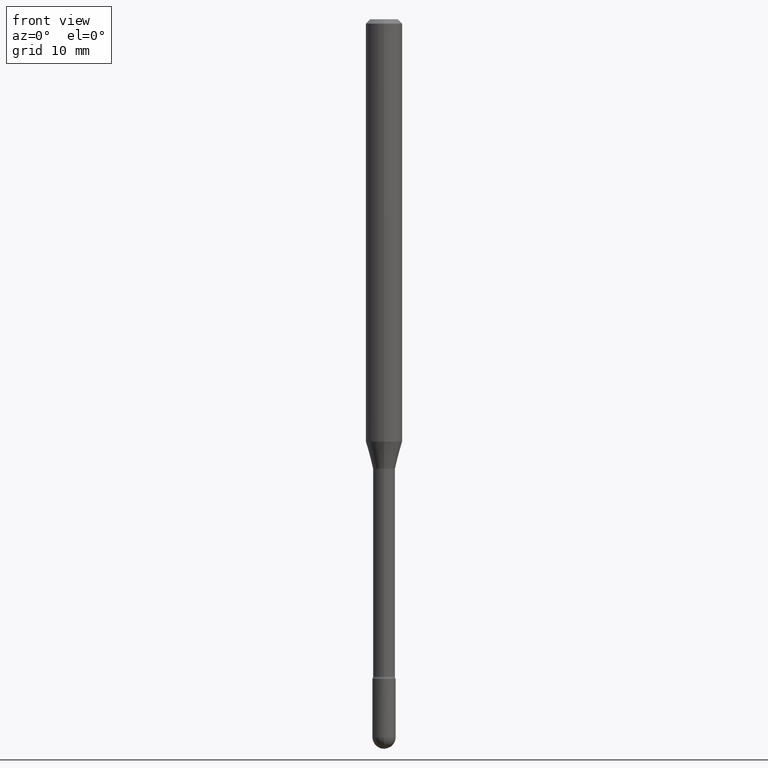
[diagram: clean part render]
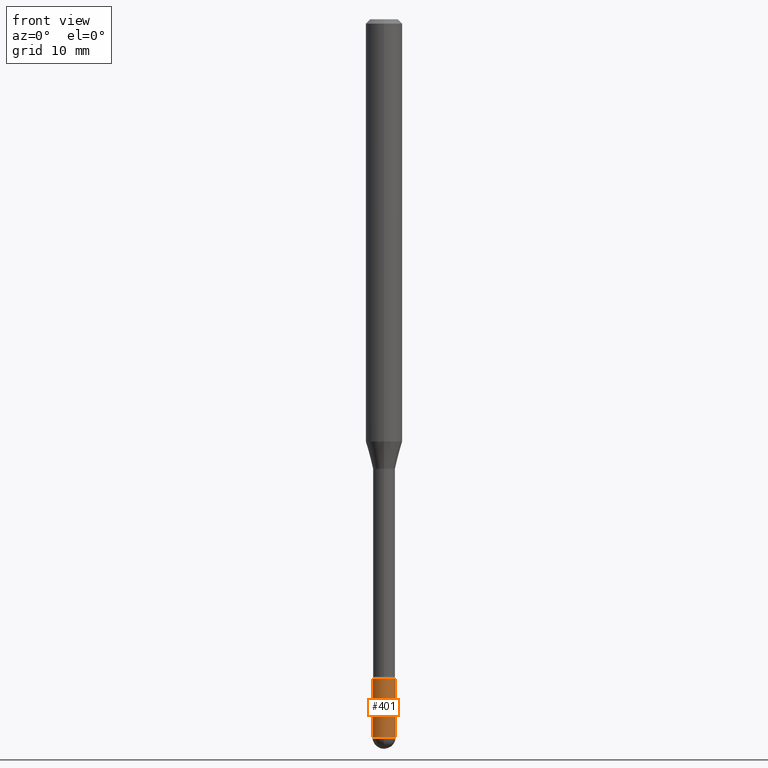
[diagram: same view with one face highlighted and labeled with its STEP entity id]
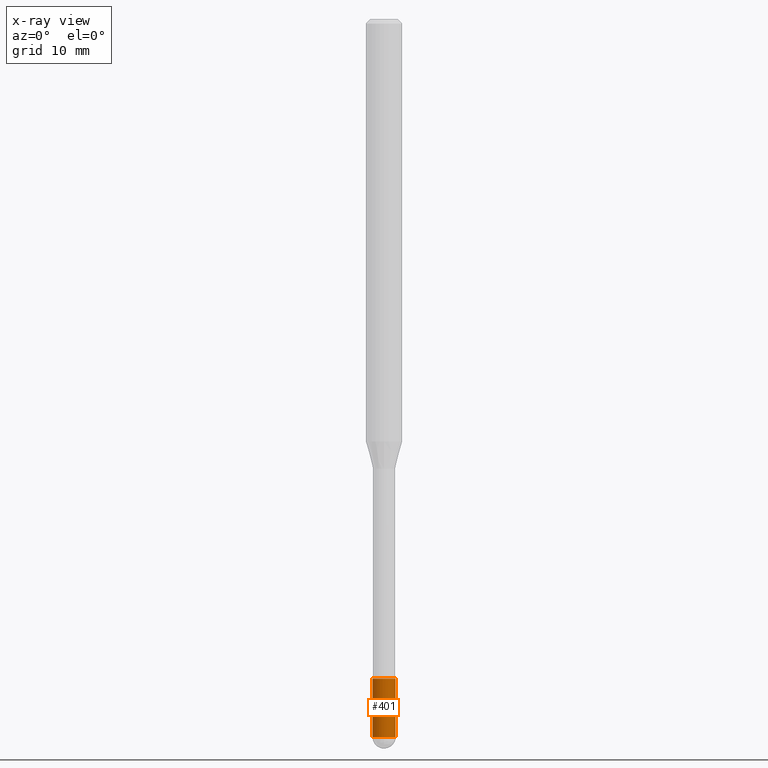
[diagram: x-ray of the same camera — body ghosted, the highlighted face saturated]
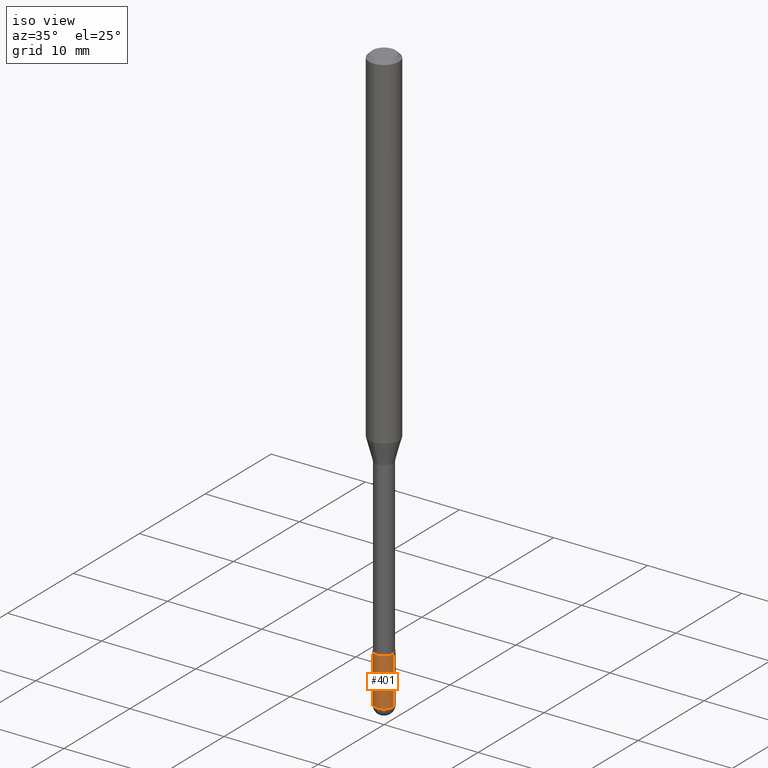
[diagram: same view with one face highlighted and labeled with its STEP entity id]
A machine part, front view. The second image highlights one B-rep face of the part: STEP entity #401.
The next image is the same camera in x-ray: the body ghosted, the highlighted face saturated — about 0% of this face is hidden behind the body in this view.
A second angle (iso view) of the same face is appended — the face is thin or edge-on in the first view.
In plain terms, the highlighted cylindrical surface (edge-blend (fillet) strip) has radius 1.016 mm, axis along (-0, 0, 1).
Its self-contained STEP definition (entity closure, byte-faithful):
#32 = EDGE_CURVE ( 'NONE', #242, #312, #58, .T. ) ;
#43 = AXIS2_PLACEMENT_3D ( 'NONE', #338, #243, #380 ) ;
#58 = LINE ( 'NONE', #236, #537 ) ;
#63 = VECTOR ( 'NONE', #121, 39.37007874015748143 ) ;
#72 = DIRECTION ( 'NONE',  ( -2.445468806185136597E-29, 3.491481338843145583E-15, 1.000000000000000000 ) ) ;
#78 = CARTESIAN_POINT ( 'NONE',  ( 6.015853263215436432E-29, -8.589044093554138346E-15, -2.459999999999999964 ) ) ;
#85 = EDGE_LOOP ( 'NONE', ( #191, #427, #209, #517, #244 ) ) ;
#116 = DIRECTION ( 'NONE',  ( 1.000000000000000000, -6.982962677686260400E-15, 0.000000000000000000 ) ) ;
#121 = DIRECTION ( 'NONE',  ( -2.445468806185136877E-29, 3.491481338843145188E-15, 1.000000000000000000 ) ) ;
#141 = CARTESIAN_POINT ( 'NONE',  ( -0.03999999999999999389, -7.955678865365783106E-15, -2.459999999999999964 ) ) ;
#148 = VERTEX_POINT ( 'NONE', #497 ) ;
#182 = FACE_OUTER_BOUND ( 'NONE', #85, .T. ) ;
#184 = CARTESIAN_POINT ( 'NONE',  ( 6.015853263215436432E-29, -8.589044093554138346E-15, -2.459999999999999964 ) ) ;
#191 = ORIENTED_EDGE ( 'NONE', *, *, #507, .F. ) ;
#193 = LINE ( 'NONE', #203, #63 ) ;
#201 = DIRECTION ( 'NONE',  ( -2.445468806185136877E-29, 3.491481338843145188E-15, 1.000000000000000000 ) ) ;
#203 = CARTESIAN_POINT ( 'NONE',  ( -0.04000000000000000083, 2.842170943040400803E-16, -1.967574036101962509E-30 ) ) ;
#209 = ORIENTED_EDGE ( 'NONE', *, *, #363, .T. ) ;
#228 = AXIS2_PLACEMENT_3D ( 'NONE', #184, #366, #542 ) ;
#236 = CARTESIAN_POINT ( 'NONE',  ( 0.04000000000000000083, -2.793185071074506290E-16, 1.950470710318374387E-30 ) ) ;
#242 = VERTEX_POINT ( 'NONE', #439 ) ;
#243 = DIRECTION ( 'NONE',  ( -2.445468806185136597E-29, 3.491481338843145583E-15, 1.000000000000000000 ) ) ;
#244 = ORIENTED_EDGE ( 'NONE', *, *, #529, .F. ) ;
#256 = CIRCLE ( 'NONE', #228, 0.03999999999999999389 ) ;
#312 = VERTEX_POINT ( 'NONE', #321 ) ;
#321 = CARTESIAN_POINT ( 'NONE',  ( 0.04000000000000000083, -8.170066332892960135E-15, -2.260000000000000231 ) ) ;
#338 = CARTESIAN_POINT ( 'NONE',  ( 5.526759501978408888E-29, -7.890747825785510097E-15, -2.260000000000000231 ) ) ;
#363 = EDGE_CURVE ( 'NONE', #487, #242, #256, .T. ) ;
#364 = CYLINDRICAL_SURFACE ( 'NONE', #400, 0.04000000000000000083 ) ;
#366 = DIRECTION ( 'NONE',  ( -2.445468806185136597E-29, 3.491481338843145583E-15, 1.000000000000000000 ) ) ;
#368 = CIRCLE ( 'NONE', #43, 0.04000000000000000083 ) ;
#372 = CIRCLE ( 'NONE', #417, 0.03999999999999999389 ) ;
#374 = VERTEX_POINT ( 'NONE', #141 ) ;
#376 = DIRECTION ( 'NONE',  ( -2.445468806185136597E-29, 3.491481338843145583E-15, 1.000000000000000000 ) ) ;
#380 = DIRECTION ( 'NONE',  ( 1.000000000000000000, -6.982962677686259611E-15, 0.000000000000000000 ) ) ;
#385 = CARTESIAN_POINT ( 'NONE',  ( -2.842170943039800282E-16, -0.04000000000000860506, -2.459999999999999520 ) ) ;
#400 = AXIS2_PLACEMENT_3D ( 'NONE', #540, #376, #549 ) ;
#401 = ADVANCED_FACE ( 'NONE', ( #182 ), #364, .T. ) ;
#417 = AXIS2_PLACEMENT_3D ( 'NONE', #78, #72, #116 ) ;
#427 = ORIENTED_EDGE ( 'NONE', *, *, #538, .T. ) ;
#439 = CARTESIAN_POINT ( 'NONE',  ( 0.03999999999999999389, -8.519214466777273470E-15, -2.459999999999999964 ) ) ;
#487 = VERTEX_POINT ( 'NONE', #385 ) ;
#497 = CARTESIAN_POINT ( 'NONE',  ( -0.04000000000000000083, -7.955678865365783106E-15, -2.260000000000000231 ) ) ;
#507 = EDGE_CURVE ( 'NONE', #374, #148, #193, .T. ) ;
#517 = ORIENTED_EDGE ( 'NONE', *, *, #32, .T. ) ;
#529 = EDGE_CURVE ( 'NONE', #148, #312, #368, .T. ) ;
#537 = VECTOR ( 'NONE', #201, 39.37007874015748143 ) ;
#538 = EDGE_CURVE ( 'NONE', #374, #487, #372, .T. ) ;
#540 = CARTESIAN_POINT ( 'NONE',  ( 0.000000000000000000, 0.000000000000000000, 0.000000000000000000 ) ) ;
#542 = DIRECTION ( 'NONE',  ( 1.000000000000000000, -6.982962677686260400E-15, 0.000000000000000000 ) ) ;
#549 = DIRECTION ( 'NONE',  ( 1.000000000000000000, -6.982962677686265922E-15, 4.876176775795935793E-29 ) ) ;